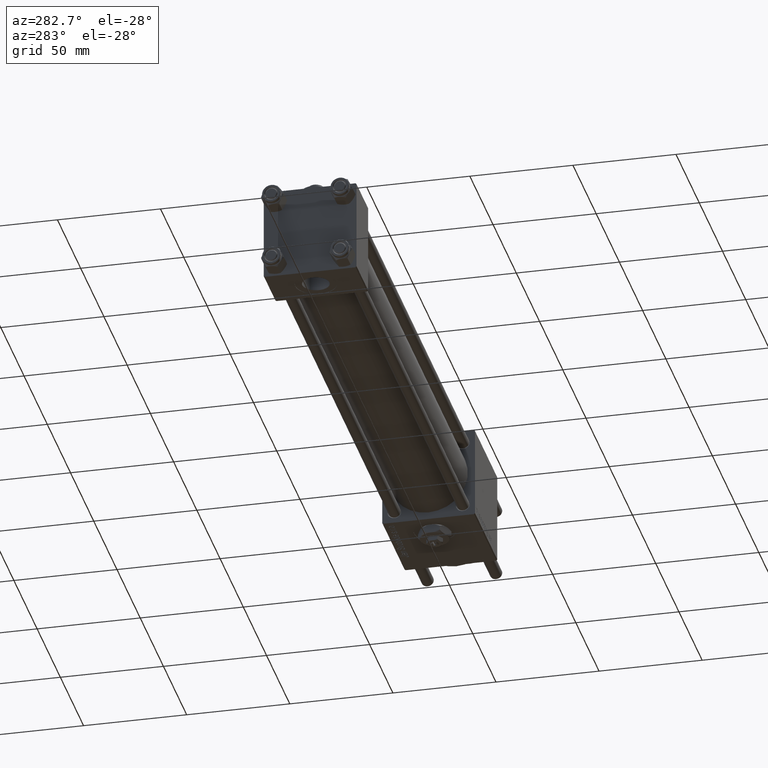
[diagram: clean part render]
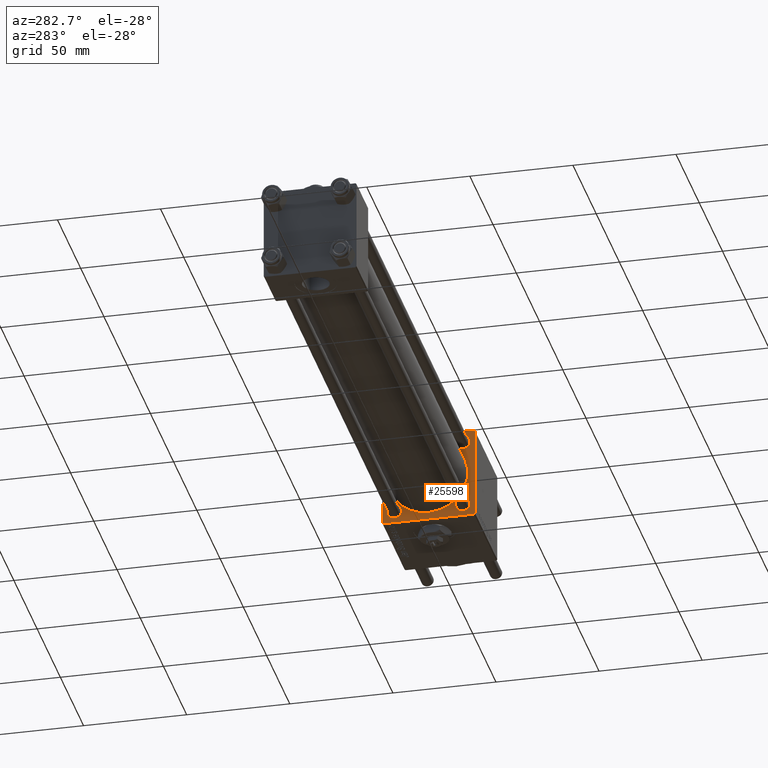
[diagram: same view with one face highlighted and labeled with its STEP entity id]
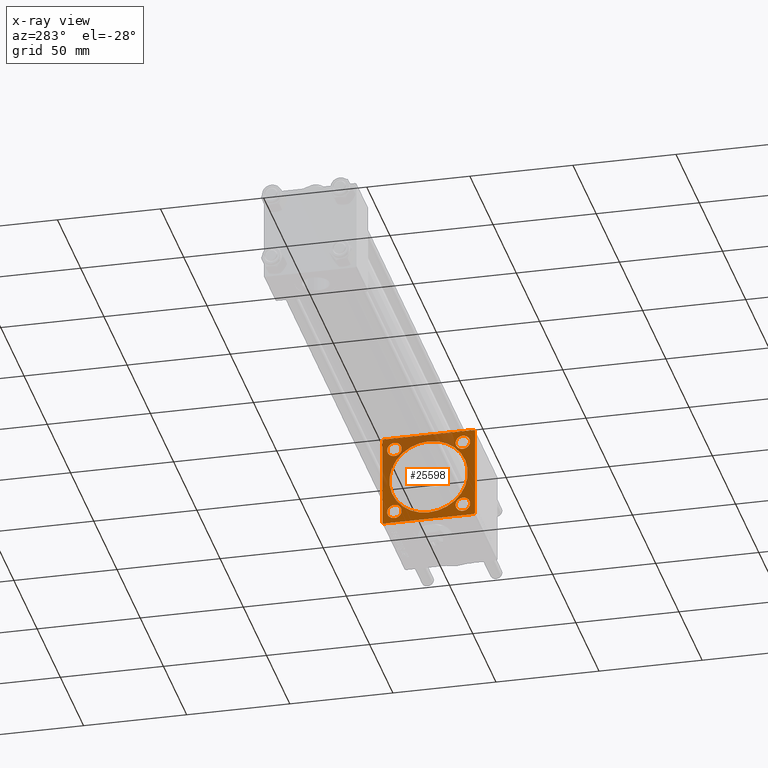
[diagram: x-ray of the same camera — body ghosted, the highlighted face saturated]
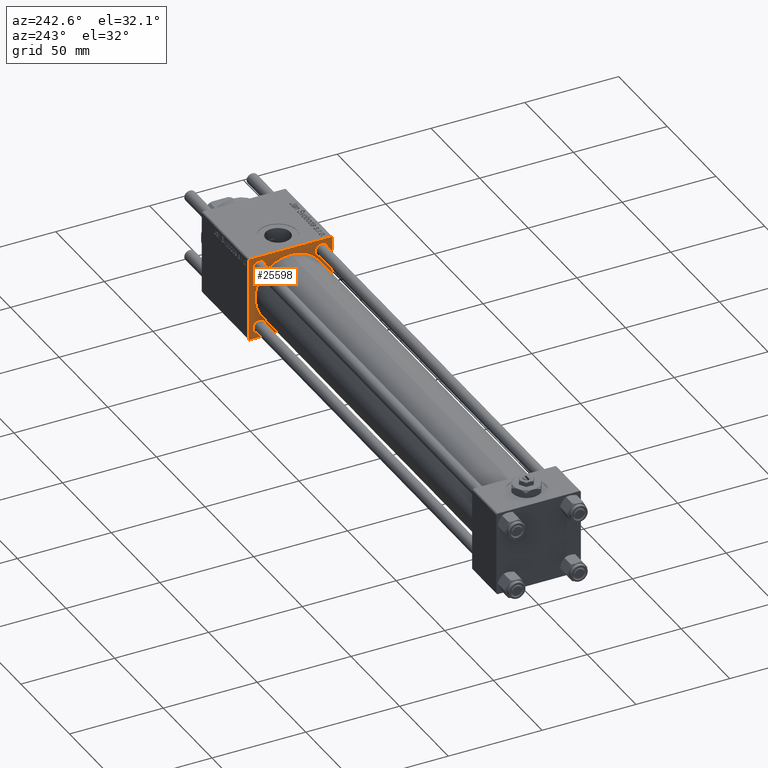
[diagram: same view with one face highlighted and labeled with its STEP entity id]
A machine part, auxiliary view. The second image highlights one B-rep face of the part: STEP entity #25598.
The next image is the same camera in x-ray: the body ghosted, the highlighted face saturated — about 33% of this face is hidden behind the body in this view.
A second angle (auxiliary view) of the same face is appended — the face is thin or edge-on in the first view.
In plain terms, the highlighted planar face has unit normal (-1, 0, 0).
Its self-contained STEP definition (entity closure, byte-faithful):
#416 = VERTEX_POINT ( 'NONE', #46701 ) ;
#676 = CIRCLE ( 'NONE', #57794, 3.500000000000031086 ) ;
#1174 = VECTOR ( 'NONE', #17467, 1000.000000000000000 ) ;
#1404 = CARTESIAN_POINT ( 'NONE',  ( 255.0000000000000000, 21.99999999999994671, -22.49999999999999645 ) ) ;
#1922 = AXIS2_PLACEMENT_3D ( 'NONE', #38363, #48084, #25006 ) ;
#2480 = ORIENTED_EDGE ( 'NONE', *, *, #37704, .F. ) ;
#2548 = ORIENTED_EDGE ( 'NONE', *, *, #6022, .T. ) ;
#3062 = VECTOR ( 'NONE', #41546, 1000.000000000000000 ) ;
#3203 = CARTESIAN_POINT ( 'NONE',  ( 255.0000000000000000, 22.50000000000000355, 22.50000000000000355 ) ) ;
#3454 = CARTESIAN_POINT ( 'NONE',  ( 255.0000000000000000, -16.59999999999999076, 16.60000000000000853 ) ) ;
#4102 = LINE ( 'NONE', #3203, #1174 ) ;
#4374 = AXIS2_PLACEMENT_3D ( 'NONE', #37769, #10453, #28951 ) ;
#5658 = DIRECTION ( 'NONE',  ( 0.000000000000000000, 0.000000000000000000, -1.000000000000000000 ) ) ;
#6022 = EDGE_CURVE ( 'NONE', #24971, #33788, #49320, .T. ) ;
#6289 = VERTEX_POINT ( 'NONE', #48952 ) ;
#7216 = ORIENTED_EDGE ( 'NONE', *, *, #17631, .T. ) ;
#7223 = CARTESIAN_POINT ( 'NONE',  ( 255.0000000000000000, -16.59999999999999076, -16.60000000000000853 ) ) ;
#7355 = EDGE_CURVE ( 'NONE', #416, #8896, #31045, .T. ) ;
#7552 = CARTESIAN_POINT ( 'NONE',  ( 255.0000000000000000, -16.59999999999999076, 16.60000000000000853 ) ) ;
#7851 = DIRECTION ( 'NONE',  ( 0.000000000000000000, 0.000000000000000000, 1.000000000000000000 ) ) ;
#8261 = CIRCLE ( 'NONE', #10190, 3.500000000000003109 ) ;
#8896 = VERTEX_POINT ( 'NONE', #1404 ) ;
#9108 = DIRECTION ( 'NONE',  ( 0.000000000000000000, 0.000000000000000000, 1.000000000000000000 ) ) ;
#9603 = EDGE_CURVE ( 'NONE', #33788, #24971, #8261, .T. ) ;
#9727 = CARTESIAN_POINT ( 'NONE',  ( 255.0000000000000000, -22.25000000000060751, 22.24999999999936762 ) ) ;
#10190 = AXIS2_PLACEMENT_3D ( 'NONE', #45833, #41582, #9108 ) ;
#10453 = DIRECTION ( 'NONE',  ( 1.000000000000000000, -0.000000000000000000, 0.000000000000000000 ) ) ;
#10617 = CIRCLE ( 'NONE', #1922, 3.500000000000003109 ) ;
#10728 = ORIENTED_EDGE ( 'NONE', *, *, #7355, .T. ) ;
#11445 = VECTOR ( 'NONE', #46868, 1000.000000000000000 ) ;
#11700 = AXIS2_PLACEMENT_3D ( 'NONE', #19604, #33543, #47230 ) ;
#11846 = CARTESIAN_POINT ( 'NONE',  ( 255.0000000000000000, -21.99999999999998224, -22.50000000000000000 ) ) ;
#12115 = VERTEX_POINT ( 'NONE', #33004 ) ;
#12394 = ORIENTED_EDGE ( 'NONE', *, *, #22649, .T. ) ;
#13284 = DIRECTION ( 'NONE',  ( 0.000000000000000000, 0.7071067811865279218, -0.7071067811865672237 ) ) ;
#13528 = FACE_BOUND ( 'NONE', #41426, .T. ) ;
#13685 = VERTEX_POINT ( 'NONE', #16467 ) ;
#13690 = ORIENTED_EDGE ( 'NONE', *, *, #21841, .F. ) ;
#13729 = DIRECTION ( 'NONE',  ( 1.000000000000000000, -0.000000000000000000, 0.000000000000000000 ) ) ;
#13755 = ORIENTED_EDGE ( 'NONE', *, *, #40977, .T. ) ;
#14379 = AXIS2_PLACEMENT_3D ( 'NONE', #7552, #39717, #7851 ) ;
#14480 = EDGE_LOOP ( 'NONE', ( #50904, #15764 ) ) ;
#15659 = VERTEX_POINT ( 'NONE', #51093 ) ;
#15764 = ORIENTED_EDGE ( 'NONE', *, *, #30896, .T. ) ;
#15852 = VERTEX_POINT ( 'NONE', #11846 ) ;
#16467 = CARTESIAN_POINT ( 'NONE',  ( 255.0000000000000000, 16.59999999999999787, -13.10000000000000142 ) ) ;
#17235 = DIRECTION ( 'NONE',  ( 1.000000000000000000, -0.000000000000000000, 0.000000000000000000 ) ) ;
#17300 = DIRECTION ( 'NONE',  ( 1.000000000000000000, -0.000000000000000000, 0.000000000000000000 ) ) ;
#17328 = EDGE_LOOP ( 'NONE', ( #55022, #22587 ) ) ;
#17467 = DIRECTION ( 'NONE',  ( 0.000000000000000000, -1.000000000000000000, -2.312964634635742957E-16 ) ) ;
#17631 = EDGE_CURVE ( 'NONE', #12115, #51355, #21108, .T. ) ;
#17801 = FACE_BOUND ( 'NONE', #14480, .T. ) ;
#17860 = CARTESIAN_POINT ( 'NONE',  ( 255.0000000000000000, 22.25000000000061462, 22.24999999999937828 ) ) ;
#18658 = AXIS2_PLACEMENT_3D ( 'NONE', #50378, #22442, #5658 ) ;
#19604 = CARTESIAN_POINT ( 'NONE',  ( 255.0000000000000000, -2.602085213965210642E-15, 0.000000000000000000 ) ) ;
#19799 = DIRECTION ( 'NONE',  ( 0.000000000000000000, 0.000000000000000000, 1.000000000000000000 ) ) ;
#19851 = VECTOR ( 'NONE', #46144, 1000.000000000000000 ) ;
#20180 = CARTESIAN_POINT ( 'NONE',  ( 255.0000000000000000, -16.59999999999999076, -20.10000000000000853 ) ) ;
#21066 = CARTESIAN_POINT ( 'NONE',  ( 255.0000000000000000, 22.00000000000000355, 22.50000000000000355 ) ) ;
#21108 = CIRCLE ( 'NONE', #37602, 3.500000000000031086 ) ;
#21441 = CIRCLE ( 'NONE', #35994, 3.500000000000031086 ) ;
#21841 = EDGE_CURVE ( 'NONE', #21885, #52927, #23485, .T. ) ;
#21885 = VERTEX_POINT ( 'NONE', #38036 ) ;
#22442 = DIRECTION ( 'NONE',  ( 1.000000000000000000, 0.000000000000000000, 0.000000000000000000 ) ) ;
#22542 = DIRECTION ( 'NONE',  ( 0.000000000000000000, 0.000000000000000000, 1.000000000000000000 ) ) ;
#22587 = ORIENTED_EDGE ( 'NONE', *, *, #42565, .T. ) ;
#22607 = EDGE_LOOP ( 'NONE', ( #12394, #7216 ) ) ;
#22649 = EDGE_CURVE ( 'NONE', #51355, #12115, #49284, .T. ) ;
#23137 = AXIS2_PLACEMENT_3D ( 'NONE', #7223, #17235, #25722 ) ;
#23485 = LINE ( 'NONE', #52307, #11445 ) ;
#23928 = CARTESIAN_POINT ( 'NONE',  ( 255.0000000000000000, 22.24999999999996803, -22.24999999999996803 ) ) ;
#24396 = EDGE_CURVE ( 'NONE', #36730, #49643, #49729, .T. ) ;
#24502 = VECTOR ( 'NONE', #36272, 1000.000000000000000 ) ;
#24971 = VERTEX_POINT ( 'NONE', #33496 ) ;
#25006 = DIRECTION ( 'NONE',  ( 0.000000000000000000, 0.000000000000000000, 1.000000000000000000 ) ) ;
#25275 = DIRECTION ( 'NONE',  ( 0.000000000000000000, 0.000000000000000000, 1.000000000000000000 ) ) ;
#25598 = ADVANCED_FACE ( 'NONE', ( #27181, #17801, #13528, #31424, #26283, #54793 ), #49659, .T. ) ;
#25722 = DIRECTION ( 'NONE',  ( 0.000000000000000000, 0.000000000000000000, 1.000000000000000000 ) ) ;
#25861 = EDGE_CURVE ( 'NONE', #15659, #13685, #10617, .T. ) ;
#26142 = AXIS2_PLACEMENT_3D ( 'NONE', #26874, #45707, #27473 ) ;
#26283 = FACE_BOUND ( 'NONE', #17328, .T. ) ;
#26874 = CARTESIAN_POINT ( 'NONE',  ( 255.0000000000000000, 0.000000000000000000, 0.000000000000000000 ) ) ;
#27181 = FACE_BOUND ( 'NONE', #22607, .T. ) ;
#27230 = CARTESIAN_POINT ( 'NONE',  ( 255.0000000000000000, -16.59999999999999076, 20.10000000000003695 ) ) ;
#27463 = LINE ( 'NONE', #55091, #24502 ) ;
#27473 = DIRECTION ( 'NONE',  ( -0.000000000000000000, 0.000000000000000000, 1.000000000000000000 ) ) ;
#28134 = EDGE_CURVE ( 'NONE', #53816, #6289, #44595, .T. ) ;
#28334 = CIRCLE ( 'NONE', #18658, 19.00000000000000000 ) ;
#28951 = DIRECTION ( 'NONE',  ( 0.000000000000000000, 0.000000000000000000, 1.000000000000000000 ) ) ;
#28964 = ORIENTED_EDGE ( 'NONE', *, *, #42399, .T. ) ;
#29036 = ORIENTED_EDGE ( 'NONE', *, *, #30384, .T. ) ;
#29051 = ORIENTED_EDGE ( 'NONE', *, *, #9603, .T. ) ;
#30384 = EDGE_CURVE ( 'NONE', #49643, #416, #45107, .T. ) ;
#30896 = EDGE_CURVE ( 'NONE', #48467, #58929, #21441, .T. ) ;
#31039 = EDGE_CURVE ( 'NONE', #15852, #52927, #54596, .T. ) ;
#31045 = LINE ( 'NONE', #23928, #57100 ) ;
#31424 = FACE_BOUND ( 'NONE', #41755, .T. ) ;
#32302 = EDGE_LOOP ( 'NONE', ( #13755, #49630, #13690, #28964, #2480, #38657, #29036, #10728 ) ) ;
#33004 = CARTESIAN_POINT ( 'NONE',  ( 255.0000000000000000, -16.59999999999999076, 13.09999999999997655 ) ) ;
#33496 = CARTESIAN_POINT ( 'NONE',  ( 255.0000000000000000, -16.59999999999999076, -13.10000000000000320 ) ) ;
#33543 = DIRECTION ( 'NONE',  ( 1.000000000000000000, 0.000000000000000000, 0.000000000000000000 ) ) ;
#33788 = VERTEX_POINT ( 'NONE', #20180 ) ;
#34364 = ORIENTED_EDGE ( 'NONE', *, *, #25861, .T. ) ;
#35501 = CARTESIAN_POINT ( 'NONE',  ( 255.0000000000000000, -21.99999999999998224, 22.49999999999999289 ) ) ;
#35540 = CARTESIAN_POINT ( 'NONE',  ( 255.0000000000000000, -22.49999999999999645, -21.99999999999995026 ) ) ;
#35704 = DIRECTION ( 'NONE',  ( 0.000000000000000000, 0.000000000000000000, -1.000000000000000000 ) ) ;
#35994 = AXIS2_PLACEMENT_3D ( 'NONE', #58861, #17300, #19799 ) ;
#36272 = DIRECTION ( 'NONE',  ( 0.000000000000000000, -1.000000000000000000, -7.709882115452476934E-17 ) ) ;
#36730 = VERTEX_POINT ( 'NONE', #21066 ) ;
#37267 = CARTESIAN_POINT ( 'NONE',  ( 255.0000000000000000, -22.25000000000076383, -22.24999999999921840 ) ) ;
#37602 = AXIS2_PLACEMENT_3D ( 'NONE', #3454, #13729, #22542 ) ;
#37623 = LINE ( 'NONE', #9727, #19851 ) ;
#37704 = EDGE_CURVE ( 'NONE', #36730, #38138, #4102, .T. ) ;
#37769 = CARTESIAN_POINT ( 'NONE',  ( 255.0000000000000000, 16.59999999999999787, -16.60000000000000497 ) ) ;
#38036 = CARTESIAN_POINT ( 'NONE',  ( 255.0000000000000000, -22.49999999999999645, 21.99999999999996447 ) ) ;
#38138 = VERTEX_POINT ( 'NONE', #35501 ) ;
#38363 = CARTESIAN_POINT ( 'NONE',  ( 255.0000000000000000, 16.59999999999999787, -16.60000000000000497 ) ) ;
#38657 = ORIENTED_EDGE ( 'NONE', *, *, #24396, .T. ) ;
#39220 = CIRCLE ( 'NONE', #4374, 3.500000000000003109 ) ;
#39717 = DIRECTION ( 'NONE',  ( 1.000000000000000000, -0.000000000000000000, 0.000000000000000000 ) ) ;
#40151 = CARTESIAN_POINT ( 'NONE',  ( 255.0000000000000000, 22.50000000000000355, 21.99999999999997513 ) ) ;
#40977 = EDGE_CURVE ( 'NONE', #8896, #15852, #27463, .T. ) ;
#41426 = EDGE_LOOP ( 'NONE', ( #50514, #34364 ) ) ;
#41546 = DIRECTION ( 'NONE',  ( 0.000000000000000000, -0.7071067811865230368, 0.7071067811865721087 ) ) ;
#41582 = DIRECTION ( 'NONE',  ( 1.000000000000000000, -0.000000000000000000, 0.000000000000000000 ) ) ;
#41755 = EDGE_LOOP ( 'NONE', ( #2548, #29051 ) ) ;
#41970 = EDGE_CURVE ( 'NONE', #13685, #15659, #39220, .T. ) ;
#42399 = EDGE_CURVE ( 'NONE', #21885, #38138, #37623, .T. ) ;
#42565 = EDGE_CURVE ( 'NONE', #6289, #53816, #28334, .T. ) ;
#44595 = CIRCLE ( 'NONE', #11700, 19.00000000000000000 ) ;
#45107 = LINE ( 'NONE', #50570, #57264 ) ;
#45707 = DIRECTION ( 'NONE',  ( -1.000000000000000000, 0.000000000000000000, -0.000000000000000000 ) ) ;
#45833 = CARTESIAN_POINT ( 'NONE',  ( 255.0000000000000000, -16.59999999999999076, -16.60000000000000853 ) ) ;
#46144 = DIRECTION ( 'NONE',  ( -0.000000000000000000, 0.7071067811865279218, 0.7071067811865672237 ) ) ;
#46701 = CARTESIAN_POINT ( 'NONE',  ( 255.0000000000000000, 22.50000000000000355, -21.99999999999992539 ) ) ;
#46868 = DIRECTION ( 'NONE',  ( 0.000000000000000000, 0.000000000000000000, -1.000000000000000000 ) ) ;
#46971 = CARTESIAN_POINT ( 'NONE',  ( 255.0000000000000000, 16.59999999999999787, 13.09999999999997300 ) ) ;
#47230 = DIRECTION ( 'NONE',  ( 0.000000000000000000, 0.000000000000000000, -1.000000000000000000 ) ) ;
#48084 = DIRECTION ( 'NONE',  ( 1.000000000000000000, -0.000000000000000000, 0.000000000000000000 ) ) ;
#48355 = DIRECTION ( 'NONE',  ( 1.000000000000000000, -0.000000000000000000, 0.000000000000000000 ) ) ;
#48467 = VERTEX_POINT ( 'NONE', #46971 ) ;
#48952 = CARTESIAN_POINT ( 'NONE',  ( 255.0000000000000000, -2.752562955852396712E-16, -19.00000000000000000 ) ) ;
#49256 = CARTESIAN_POINT ( 'NONE',  ( 255.0000000000000000, 16.59999999999999787, 16.60000000000000497 ) ) ;
#49284 = CIRCLE ( 'NONE', #14379, 3.500000000000031086 ) ;
#49320 = CIRCLE ( 'NONE', #23137, 3.500000000000003109 ) ;
#49630 = ORIENTED_EDGE ( 'NONE', *, *, #31039, .T. ) ;
#49643 = VERTEX_POINT ( 'NONE', #40151 ) ;
#49659 = PLANE ( 'NONE',  #26142 ) ;
#49729 = LINE ( 'NONE', #17860, #53215 ) ;
#50378 = CARTESIAN_POINT ( 'NONE',  ( 255.0000000000000000, -2.602085213965210642E-15, 0.000000000000000000 ) ) ;
#50514 = ORIENTED_EDGE ( 'NONE', *, *, #41970, .T. ) ;
#50570 = CARTESIAN_POINT ( 'NONE',  ( 255.0000000000000000, 22.50000000000000355, 22.50000000000000355 ) ) ;
#50904 = ORIENTED_EDGE ( 'NONE', *, *, #54767, .T. ) ;
#51093 = CARTESIAN_POINT ( 'NONE',  ( 255.0000000000000000, 16.59999999999999787, -20.10000000000000853 ) ) ;
#51272 = DIRECTION ( 'NONE',  ( -0.000000000000000000, -0.7071067811865474617, -0.7071067811865474617 ) ) ;
#51355 = VERTEX_POINT ( 'NONE', #27230 ) ;
#52307 = CARTESIAN_POINT ( 'NONE',  ( 255.0000000000000000, -22.49999999999999645, 22.49999999999999289 ) ) ;
#52654 = CARTESIAN_POINT ( 'NONE',  ( 255.0000000000000000, -2.602085213965210642E-15, 19.00000000000000000 ) ) ;
#52927 = VERTEX_POINT ( 'NONE', #35540 ) ;
#53215 = VECTOR ( 'NONE', #13284, 1000.000000000000000 ) ;
#53816 = VERTEX_POINT ( 'NONE', #52654 ) ;
#54596 = LINE ( 'NONE', #37267, #3062 ) ;
#54767 = EDGE_CURVE ( 'NONE', #58929, #48467, #676, .T. ) ;
#54793 = FACE_OUTER_BOUND ( 'NONE', #32302, .T. ) ;
#55022 = ORIENTED_EDGE ( 'NONE', *, *, #28134, .T. ) ;
#55091 = CARTESIAN_POINT ( 'NONE',  ( 255.0000000000000000, 22.50000000000000355, -22.49999999999999645 ) ) ;
#57100 = VECTOR ( 'NONE', #51272, 1000.000000000000114 ) ;
#57264 = VECTOR ( 'NONE', #35704, 1000.000000000000000 ) ;
#57794 = AXIS2_PLACEMENT_3D ( 'NONE', #49256, #48355, #25275 ) ;
#58561 = CARTESIAN_POINT ( 'NONE',  ( 255.0000000000000000, 16.59999999999999787, 20.10000000000003340 ) ) ;
#58861 = CARTESIAN_POINT ( 'NONE',  ( 255.0000000000000000, 16.59999999999999787, 16.60000000000000497 ) ) ;
#58929 = VERTEX_POINT ( 'NONE', #58561 ) ;